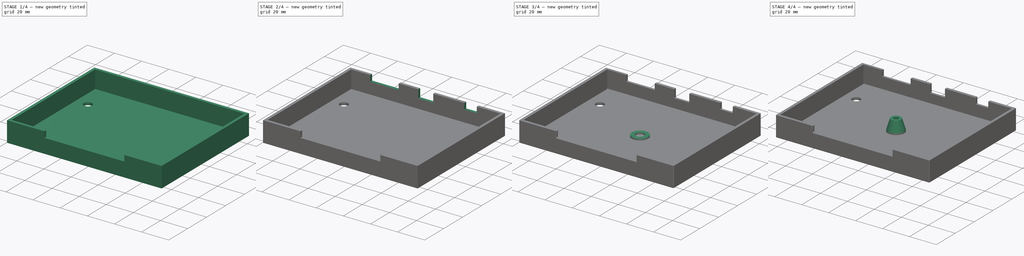
[diagram: build sequence overview — one tinted view per stage of 4, left to right]
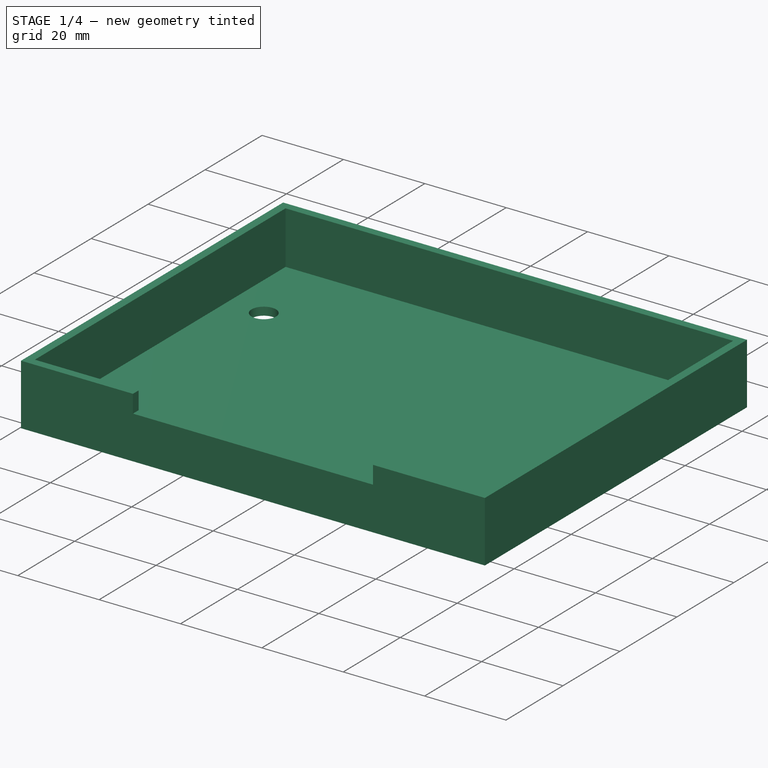
[diagram: stage 1 of 4 — iso view after this stage's code; geometry added in this stage tinted green]
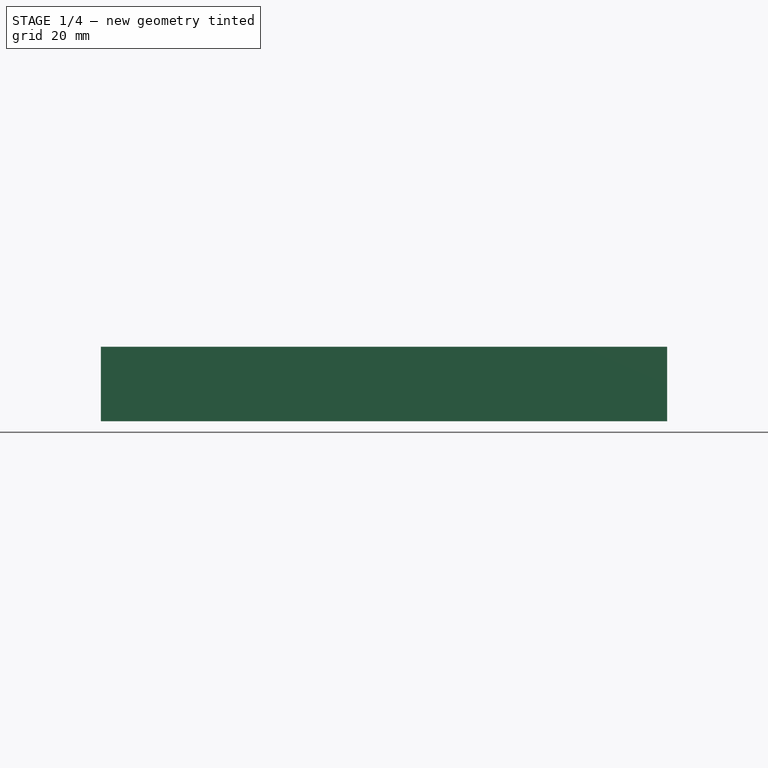
[diagram: stage 1 of 4 — front view after this stage's code; geometry added in this stage tinted green]
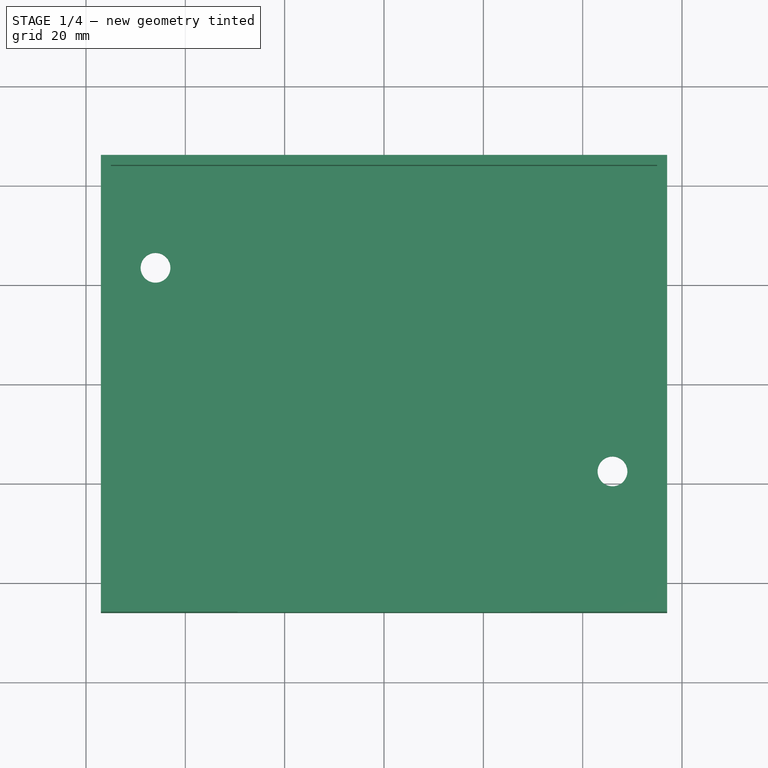
[diagram: stage 1 of 4 — top view after this stage's code; geometry added in this stage tinted green]
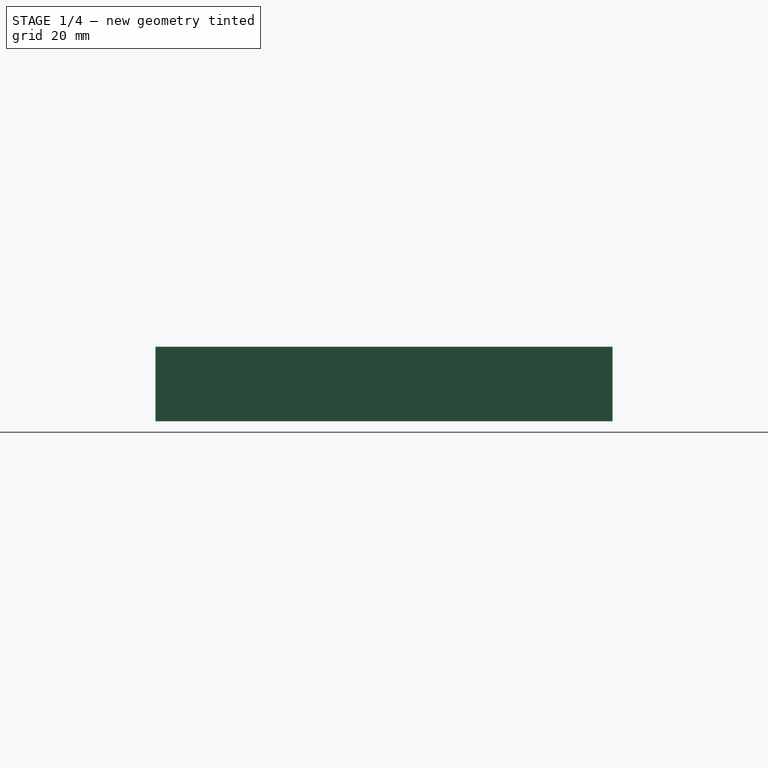
[diagram: stage 1 of 4 — right view after this stage's code; geometry added in this stage tinted green]
FCSTD DOCUMENT  (FreeCAD 0.21R33771 (Git))
Label: touch_keyboard_case_bottom
License: All rights reserved
LicenseURL: http://en.wikipedia.org/wiki/All_rights_reserved
objects: Sketcher::SketchObject×11, PartDesign::CoordinateSystem×7, PartDesign::Pad×4, PartDesign::Pocket×4, App::Link×4, PartDesign::Body×3, App::Part×3, Spreadsheet::Sheet×1, PartDesign::Hole×1, PartDesign::AdditiveLoft×1, PartDesign::Fillet×1
note: 43 computed .brp shape members not serialized (recipe doc carries the construction recipe); baked Part::Feature solids carry a one-line shape summary decoded from their .brp
EXTERNAL_REF file=touch_keyboard_led_strip.FCStd obj=Spreadsheet

FEATURE [Spreadsheet::Sheet] Spreadsheet  label="D"
  cells = A3='width; B3(width)==114 mm; A4='length; B4(length)==92 mm; A5='bottom_part_height; B5(height)==15 mm; A6='pcb_mount_height; B6(pcb_h)==7 mm; A7='bottom_width; B7(bot_w)==2 mm; A8='wall width; B8(wall_w)==2 mm; A9='PCB back distance; B9(pcb_back_d)==0.5 mm; A10='PCB width; B10(pcb_w)==100 mm; A11='PCB length; B11(pcb_l)==81 mm; A12='PCB thickness; B12(pcb_th)==1.6 mm; A13='hole 1 y margin; B13(hole1_y_margin)==4.27 mm; A14='X hole distance 1; B14(x_hole_dist1)==90 mm; A15='X hole distance 2; B15(x_hole_dist2)==60 mm; A16='Y hole distance; B16(y_hole_dist)==72 mm; A18='threaded insert hole diameter; B18(insert_d)==3.6 mm; A19='threaded insert outer diameter; B19(insert_o_d)==4.4 mm; A20='threaded insert wide hole depth; B20(insert_h_w_depth)==0.8 mm; A21='threaded insert countersink diameter; B21(insert_cs_d)==4.8 mm; A22='threaded insert wall thickness; B22(insert_w_th)==4 mm; A23='case screw pcb y margin; B23(case_screw_y_m)==20 mm; A24='case screw pcb x margin; B24(case_screw_x_m)==4 mm; A25='bottom hole diameter1; B25(bot_h_d1)==6 mm; A26='bottom hole diameter2; B26(bot_h_d2)==3.5 mm; A27='bottom hole depth; B27(bot_h_depth)==3 mm; A28='bottom hole wall thickness; B28(bot_h_w_th)==2.6 mm; A29='case post bottom diameter; B29(case_post_d1)==12 mm; A30='case post top diameter; B30(case_post_d2)==5.6 mm; A31='case post gap; B31(case_post_gap)==0.4 mm; A33='sensors connector length; B33(sens_conn_l)==59 mm; A34='sensors connector height; B34(sensors_conn_h)==10 mm; A36='USB conn height; B36(usb_conn_h)==3 mm; A37='USB conn width; B37(usb_conn_w)==7.8 mm; A38='USB conn extra; B38(usb_conn_extra)==1.6 mm; A40='MIDI conn offset; B40(midi_conn_off)==30.48 mm; A41='MIDI conn width; B41(midi_conn_w)==21 mm; A42='MIDI conn height; B42(midi_conn_h)==21 mm; A44='DC conn offset; B44(dc_conn_off)==33 mm; A45='DC conn width; B45(dc_conn_w)==9.2 mm; A46='DC conn height; B46(dc_conn_h)==11 mm; A48='LED strip length; B48(led_strip_l)==<<touch_keyboard_led_strip>>#<<D>>.length
FEATURE [Sketcher::SketchObject] Sketch  label="Case Bottom Sketch 1"
  FullyConstrained = true
  MapMode = 5
  Support = -> [XY_Plane]
  expr: Constraints[16] = <<D>>.pcb_w
  expr: Constraints[17] = <<D>>.pcb_l
  expr: Constraints[19] = <<D>>.case_screw_y_m
  expr: Constraints[20] = <<D>>.case_screw_y_m
  expr: Constraints[21] = <<D>>.bot_h_d1
  expr: Constraints[22] = <<D>>.bot_h_d1
  expr: Constraints[23] = <<D>>.case_screw_x_m
  expr: Constraints[24] = <<D>>.case_screw_x_m
  expr: Constraints[25] = <<D>>.pcb_back_d + <<D>>.wall_w
  expr: Constraints[6] = <<D>>.width
  expr: Constraints[7] = <<D>>.length
  sketch-geometry (10):
    g0: LineSegment StartX=-57 StartY=46 StartZ=0 EndX=57 EndY=46 EndZ=0
    g1: LineSegment StartX=57 StartY=46 StartZ=0 EndX=57 EndY=-46 EndZ=0
    g2: LineSegment StartX=57 StartY=-46 StartZ=0 EndX=-57 EndY=-46 EndZ=0
    g3: LineSegment StartX=-57 StartY=-46 StartZ=0 EndX=-57 EndY=46 EndZ=0
    g4: Circle CenterX=-46 CenterY=23.5 CenterZ=0 NormalX=0 NormalY=0 NormalZ=1 AngleXU=0 Radius=3
    g5: Circle CenterX=46 CenterY=-17.5 CenterZ=0 NormalX=0 NormalY=0 NormalZ=1 AngleXU=0 Radius=3
    g6: LineSegment StartX=-50 StartY=43.5 StartZ=0 EndX=50 EndY=43.5 EndZ=0
    g7: LineSegment StartX=50 StartY=43.5 StartZ=0 EndX=50 EndY=-37.5 EndZ=0
    g8: LineSegment StartX=50 StartY=-37.5 StartZ=0 EndX=-50 EndY=-37.5 EndZ=0
    g9: LineSegment StartX=-50 StartY=-37.5 StartZ=0 EndX=-50 EndY=43.5 EndZ=0
  constraints (31):
    c: Coincident(g0,g1)
    c: Coincident(g1,g2)
    c: Coincident(g2,g3)
    c: Coincident(g3,g0)
    c: Horizontal(g2)
    c: Vertical(g1)
    c: DistanceX(g0,g0) = 114
    c: DistanceY(g3,g3) = 92
    c: Symmetric(g0,g2,g-1)
    c: Symmetric(g0,g0,g-2)
    c: Coincident(g6,g7)
    c: Coincident(g7,g8)
    c: Coincident(g8,g9)
    c: Coincident(g9,g6)
    c: Horizontal(g8)
    c: Vertical(g9)
    c: DistanceX(g6,g6) = 100
    c: DistanceY(g7,g7) = 81
    c: Symmetric(g6,g6,g-2)
    c: DistanceY(g4,g6) = 20
    c: DistanceY(g7,g5) = 20
    c: Diameter(g4) = 6
    c: Diameter(g5) = 6
    c: DistanceX(g5,g7) = 4
    c: DistanceX(g6,g4) = 4
    c: DistanceY(g6,g0) = 2.5
    c: Vertical(g7)
    c: DistanceX(g4,g-1) = 46  'hole1_x'
    c: DistanceY(g-1,g4) = 23.5  'hole1_y'
    c: DistanceX(g-1,g5) = 46  'hole2_x'
    c: DistanceY(g5,g-1) = 17.5  'hole2_y'
FEATURE [PartDesign::Pad] Pad
  Direction = (0,0,1)
  Length = 2
  Length2 = 10
  Profile = -> Sketch
  ReferenceAxis = -> Sketch [N_Axis]
  Type = 0
  expr: Length = <<D>>.bot_w
FEATURE [Sketcher::SketchObject] Sketch001
  ExternalGeometry = -> [Sketch]
  FullyConstrained = true
  MapMode = 5
  Placement = pos=(0,0,2) rot=(0,0,1;0rad)
  Support = -> [Pad]
  expr: Constraints[16] = <<D>>.wall_w
  expr: Constraints[17] = <<D>>.wall_w
  expr: Constraints[20] = <<D>>.wall_w
  expr: Constraints[21] = <<D>>.wall_w
  sketch-geometry (8):
    g0: LineSegment StartX=-55 StartY=44 StartZ=0 EndX=55 EndY=44 EndZ=0
    g1: LineSegment StartX=55 StartY=44 StartZ=0 EndX=55 EndY=-44 EndZ=0
    g2: LineSegment StartX=55 StartY=-44 StartZ=0 EndX=-55 EndY=-44 EndZ=0
    g3: LineSegment StartX=-55 StartY=-44 StartZ=0 EndX=-55 EndY=44 EndZ=0
    g4: LineSegment StartX=-57 StartY=46 StartZ=0 EndX=57 EndY=46 EndZ=0
    g5: LineSegment StartX=57 StartY=46 StartZ=0 EndX=57 EndY=-46 EndZ=0
    g6: LineSegment StartX=57 StartY=-46 StartZ=0 EndX=-57 EndY=-46 EndZ=0
    g7: LineSegment StartX=-57 StartY=-46 StartZ=0 EndX=-57 EndY=46 EndZ=0
  constraints (22):
    c: Coincident(g0,g1)
    c: Coincident(g1,g2)
    c: Coincident(g2,g3)
    c: Coincident(g3,g0)
    c: Horizontal(g0)
    c: Horizontal(g2)
    c: Vertical(g1)
    c: Vertical(g3)
    c: Coincident(g4,g5)
    c: Coincident(g5,g6)
    c: Coincident(g6,g7)
    c: Coincident(g7,g4)
    c: Horizontal(g4)
    c: Horizontal(g6)
    c: Vertical(g5)
    c: Vertical(g7)
    c: DistanceX(g1,g5) = 2
    c: DistanceX(g6,g2) = 2
    c: Coincident(g6,g-6)
    c: Coincident(g4,g-4)
    c: DistanceY(g0,g4) = 2
    c: DistanceY(g6,g2) = 2
FEATURE [PartDesign::Pad] Pad001
  BaseFeature = -> Pad
  Direction = (0,0,1)
  Length = 13
  Length2 = 10
  Profile = -> Sketch001
  ReferenceAxis = -> Sketch001 [N_Axis]
  Type = 0
  expr: Length = <<D>>.height - <<D>>.bot_w
FEATURE [Sketcher::SketchObject] Sketch003  label="Sensor Hole Sketch"
  FullyConstrained = true
  MapMode = 5
  Placement = pos=(0,-46,0) rot=(1,0,0;1.5708rad)
  Support = -> [Pad001]
  expr: Constraints[10] = <<D>>.bot_w + <<D>>.pcb_h + <<D>>.pcb_th
  expr: Constraints[13] = <<D>>.height
  expr: Constraints[7] = <<D>>.sens_conn_l
  expr: Constraints[9] = <<D>>.sensors_conn_h
  sketch-geometry (5):
    g0: LineSegment StartX=-29.5 StartY=20.6 StartZ=0 EndX=29.5 EndY=20.6 EndZ=0
    g1: LineSegment StartX=29.5 StartY=20.6 StartZ=0 EndX=29.5 EndY=10.6 EndZ=0
    g2: LineSegment StartX=29.5 StartY=10.6 StartZ=0 EndX=-29.5 EndY=10.6 EndZ=0
    g3: LineSegment StartX=-29.5 StartY=10.6 StartZ=0 EndX=-29.5 EndY=20.6 EndZ=0
    g4: LineSegment StartX=-50 StartY=15 StartZ=0 EndX=50 EndY=15 EndZ=0
  constraints (15):
    c: Coincident(g0,g1)
    c: Coincident(g1,g2)
    c: Coincident(g2,g3)
    c: Coincident(g3,g0)
    c: Horizontal(g2)
    c: Vertical(g1)
    c: Vertical(g3)
    c: DistanceX(g0,g0) = 59
    c: Symmetric(g0,g0,g-2)
    c: DistanceY(g3,g3) = 10
    c: DistanceY(g-1,g2) = 10.6
    c: DistanceX(g4,g4) = 100
    c: Symmetric(g4,g4,g-2)
    c: DistanceY(g-1,g4) = 15
    c: DistanceY(g4,g0) = 5.6  'sens_conn_hole_top'
FEATURE [PartDesign::Pocket] Pocket
  BaseFeature = -> Pad001
  Direction = (0,1,-2e-16)
  Length = 5
  Length2 = 5
  Profile = -> Sketch003
  ReferenceAxis = -> Sketch003 [N_Axis]
  Type = 0
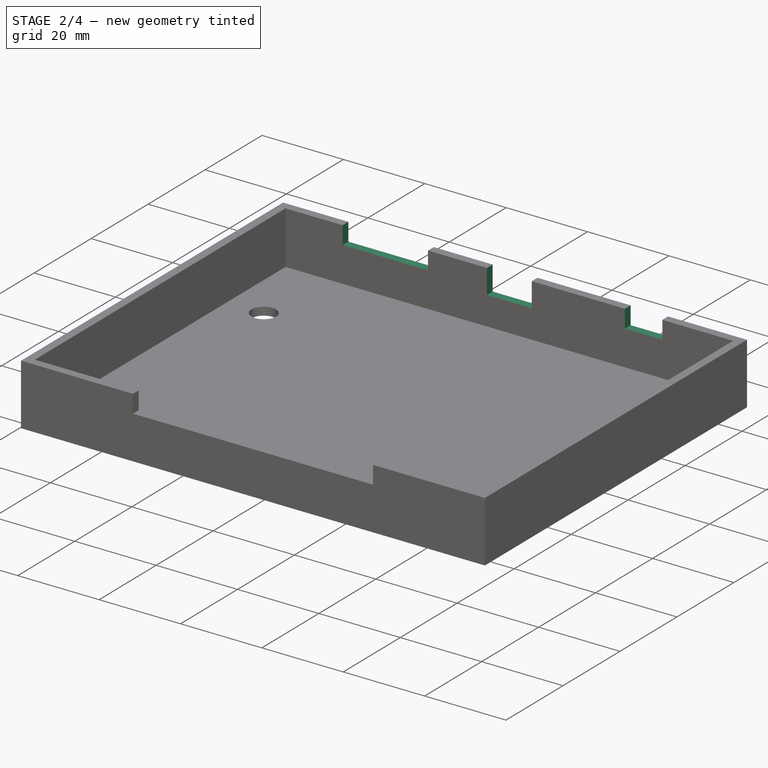
[diagram: stage 2 of 4 — iso view after this stage's code; geometry added in this stage tinted green]
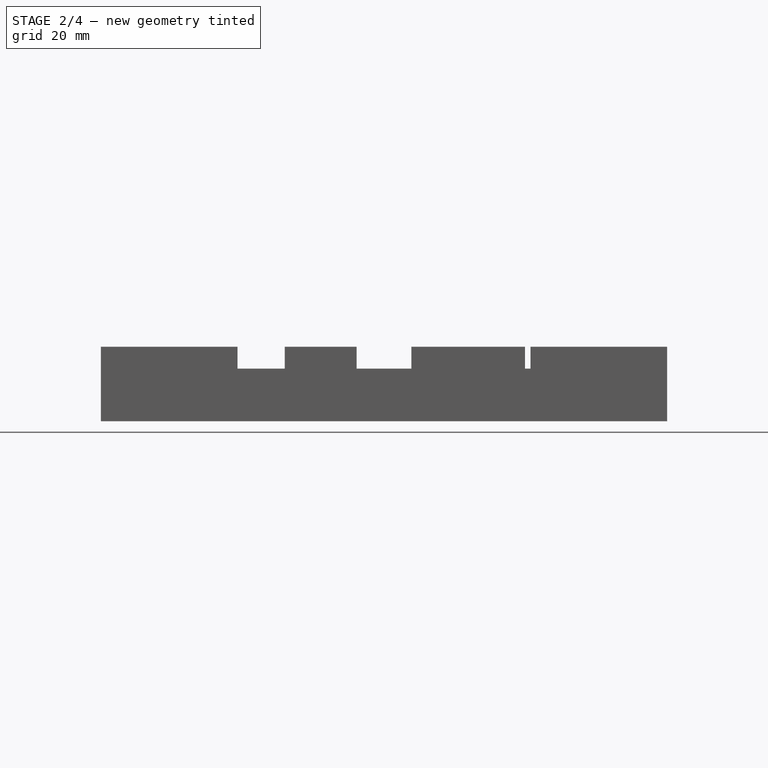
[diagram: stage 2 of 4 — front view after this stage's code; geometry added in this stage tinted green]
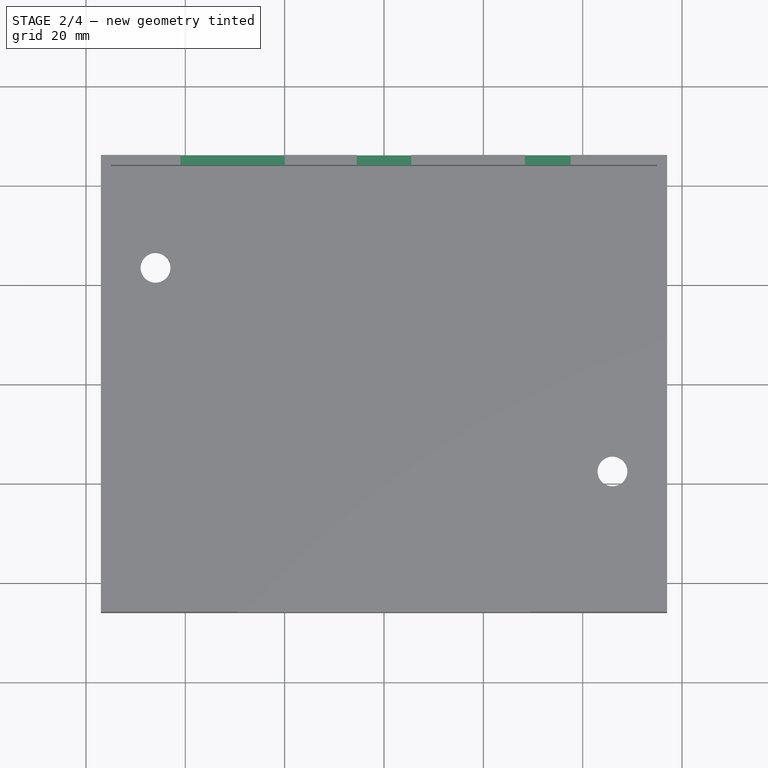
[diagram: stage 2 of 4 — top view after this stage's code; geometry added in this stage tinted green]
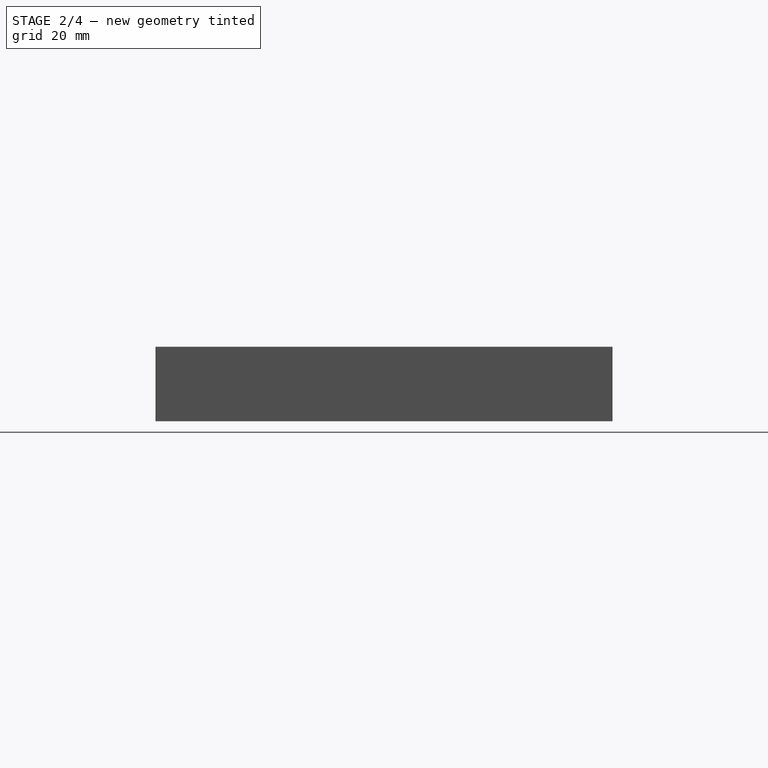
[diagram: stage 2 of 4 — right view after this stage's code; geometry added in this stage tinted green]
FEATURE [Sketcher::SketchObject] Sketch004  label="USB Hole Sketch"
  FullyConstrained = true
  MapMode = 5
  Placement = pos=(0,46,0) rot=(0,0.707107,0.707107;3.14159rad)
  Support = -> [Pocket]
  expr: Constraints[10] = <<D>>.bot_w + <<D>>.pcb_h + <<D>>.pcb_th - <<D>>.usb_conn_extra
  expr: Constraints[12] = <<D>>.height
  expr: Constraints[7] = <<D>>.usb_conn_w + <<D>>.usb_conn_extra * 2
  expr: Constraints[8] = <<D>>.usb_conn_h + <<D>>.usb_conn_extra * 2
  sketch-geometry (5):
    g0: LineSegment StartX=-5.5 StartY=15.2 StartZ=0 EndX=5.5 EndY=15.2 EndZ=0
    g1: LineSegment StartX=5.5 StartY=15.2 StartZ=0 EndX=5.5 EndY=9 EndZ=0
    g2: LineSegment StartX=5.5 StartY=9 StartZ=0 EndX=-5.5 EndY=9 EndZ=0
    g3: LineSegment StartX=-5.5 StartY=9 StartZ=0 EndX=-5.5 EndY=15.2 EndZ=0
    g4: LineSegment StartX=-50 StartY=15 StartZ=0 EndX=50 EndY=15 EndZ=0
  constraints (15):
    c: Coincident(g0,g1)
    c: Coincident(g1,g2)
    c: Coincident(g2,g3)
    c: Coincident(g3,g0)
    c: Horizontal(g2)
    c: Vertical(g1)
    c: Vertical(g3)
    c: DistanceX(g0,g0) = 11
    c: DistanceY(g3,g3) = 6.2
    c: Symmetric(g0,g0,g-2)
    c: DistanceY(g-1,g1) = 9
    c: Symmetric(g4,g4,g-2)
    c: DistanceY(g-1,g4) = 15
    c: DistanceX(g4,g4) = 100
    c: DistanceY(g4,g0) = 0.2  'usb_conn_hole_top'
FEATURE [PartDesign::Pocket] Pocket001
  BaseFeature = -> Pocket
  Direction = (0,-1,2e-16)
  Length = 5
  Length2 = 5
  Profile = -> Sketch004
  ReferenceAxis = -> Sketch004 [N_Axis]
  Type = 0
FEATURE [Sketcher::SketchObject] Sketch005  label="MIDI Hole Sketch"
  FullyConstrained = true
  MapMode = 5
  Placement = pos=(0,46,0) rot=(0,0.707107,0.707107;3.14159rad)
  Support = -> [Pocket001]
  expr: Constraints[11] = <<D>>.midi_conn_off
  expr: Constraints[12] = <<D>>.bot_w + <<D>>.pcb_h + <<D>>.pcb_th
  expr: Constraints[13] = <<D>>.midi_conn_w
  expr: Constraints[14] = <<D>>.midi_conn_h
  expr: Constraints[18] = <<D>>.height
  sketch-geometry (6):
    g0: LineSegment StartX=19.98 StartY=31.6 StartZ=0 EndX=40.98 EndY=31.6 EndZ=0
    g1: LineSegment StartX=40.98 StartY=31.6 StartZ=0 EndX=40.98 EndY=10.6 EndZ=0
    g2: LineSegment StartX=40.98 StartY=10.6 StartZ=0 EndX=19.98 EndY=10.6 EndZ=0
    g3: LineSegment StartX=19.98 StartY=10.6 StartZ=0 EndX=19.98 EndY=31.6 EndZ=0
    g4: LineSegment StartX=30.48 StartY=31.6 StartZ=0 EndX=30.48 EndY=10.6 EndZ=0
    g5: LineSegment StartX=19.98 StartY=15 StartZ=0 EndX=40.98 EndY=15 EndZ=0
  constraints (20):
    c: Coincident(g0,g1)
    c: Coincident(g1,g2)
    c: Coincident(g2,g3)
    c: Coincident(g3,g0)
    c: Horizontal(g0)
    c: Horizontal(g2)
    c: Vertical(g1)
    c: Vertical(g3)
    c: PointOnObject(g4,g2)
    c: Vertical(g4)
    c: Symmetric(g0,g0,g4)
    c: DistanceX(g-1,g4) = 30.48
    c: DistanceY(g-1,g2) = 10.6
    c: DistanceX(g0,g0) = 21
    c: DistanceY(g1,g1) = 21
    c: PointOnObject(g5,g3)
    c: PointOnObject(g5,g1)
    c: Horizontal(g5)
    c: DistanceY(g-1,g5) = 15
    c: DistanceY(g5,g0) = 16.6  'midi_conn_top_h'
FEATURE [PartDesign::Pocket] Pocket002
  BaseFeature = -> Pocket001
  Direction = (0,-1,2e-16)
  Length = 5
  Length2 = 5
  Profile = -> Sketch005
  ReferenceAxis = -> Sketch005 [N_Axis]
  Type = 0
FEATURE [Sketcher::SketchObject] Sketch006  label="DC Hole Sketch"
  FullyConstrained = true
  MapMode = 5
  Placement = pos=(0,46,0) rot=(0,0.707107,0.707107;3.14159rad)
  Support = -> [Pocket002]
  expr: Constraints[11] = <<D>>.dc_conn_off
  expr: Constraints[12] = <<D>>.dc_conn_w
  expr: Constraints[13] = <<D>>.dc_conn_h
  expr: Constraints[14] = <<D>>.bot_w + <<D>>.pcb_h + <<D>>.pcb_th
  expr: Constraints[18] = <<D>>.height
  sketch-geometry (6):
    g0: LineSegment StartX=-37.6 StartY=21.6 StartZ=0 EndX=-28.4 EndY=21.6 EndZ=0
    g1: LineSegment StartX=-28.4 StartY=21.6 StartZ=0 EndX=-28.4 EndY=10.6 EndZ=0
    g2: LineSegment StartX=-28.4 StartY=10.6 StartZ=0 EndX=-37.6 EndY=10.6 EndZ=0
    g3: LineSegment StartX=-37.6 StartY=10.6 StartZ=0 EndX=-37.6 EndY=21.6 EndZ=0
    g4: LineSegment StartX=-33 StartY=21.6 StartZ=0 EndX=-33 EndY=10.6 EndZ=0
    g5: LineSegment StartX=-37.6 StartY=15 StartZ=0 EndX=-28.4 EndY=15 EndZ=0
  constraints (20):
    c: Coincident(g0,g1)
    c: Coincident(g1,g2)
    c: Coincident(g2,g3)
    c: Coincident(g3,g0)
    c: Horizontal(g0)
    c: Horizontal(g2)
    c: Vertical(g1)
    c: Vertical(g3)
    c: PointOnObject(g4,g2)
    c: Vertical(g4)
    c: Symmetric(g0,g0,g4)
    c: DistanceX(g4,g-1) = 33
    c: DistanceX(g0,g0) = 9.2
    c: DistanceY(g3,g3) = 11
    c: DistanceY(g-1,g1) = 10.6
    c: PointOnObject(g5,g3)
    c: PointOnObject(g5,g1)
    c: Horizontal(g5)
    c: DistanceY(g-1,g5) = 15
    c: DistanceY(g5,g0) = 6.6  'dc_conn_top_h'
FEATURE [PartDesign::Pocket] Pocket003
  BaseFeature = -> Pocket002
  Direction = (0,-1,2e-16)
  Length = 5
  Length2 = 5
  Profile = -> Sketch006
  ReferenceAxis = -> Sketch006 [N_Axis]
  Type = 0
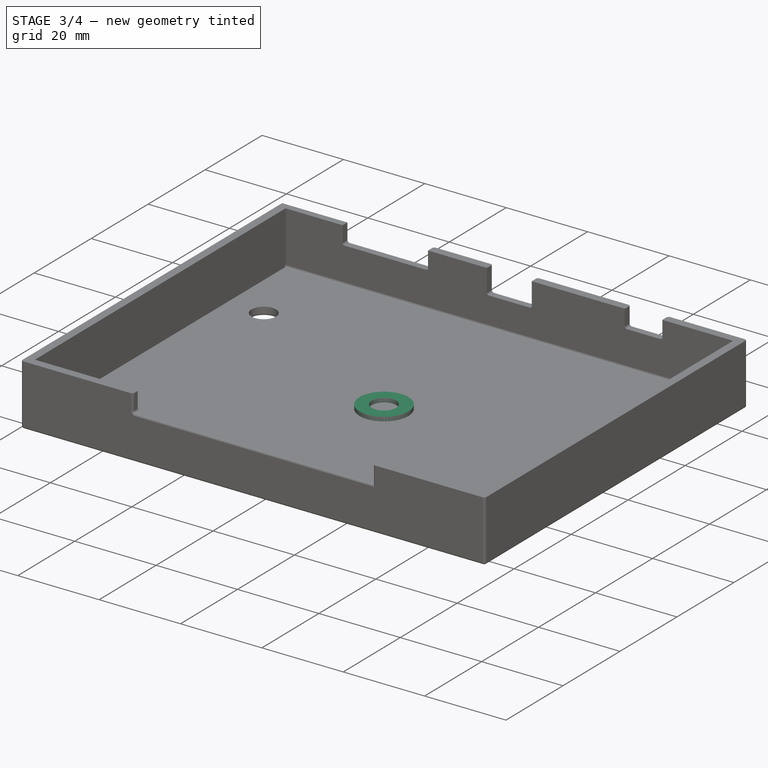
[diagram: stage 3 of 4 — iso view after this stage's code; geometry added in this stage tinted green]
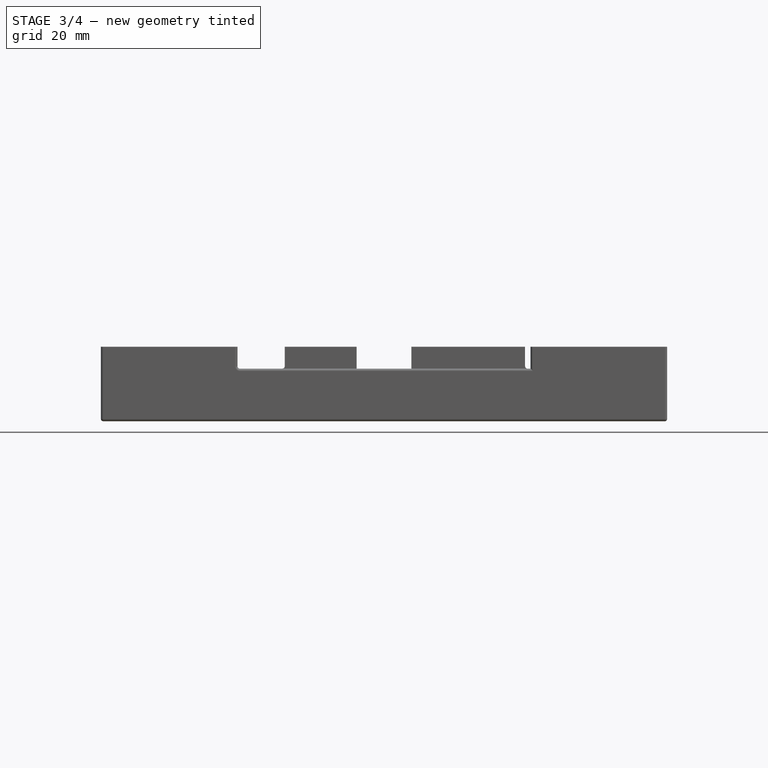
[diagram: stage 3 of 4 — front view after this stage's code; geometry added in this stage tinted green]
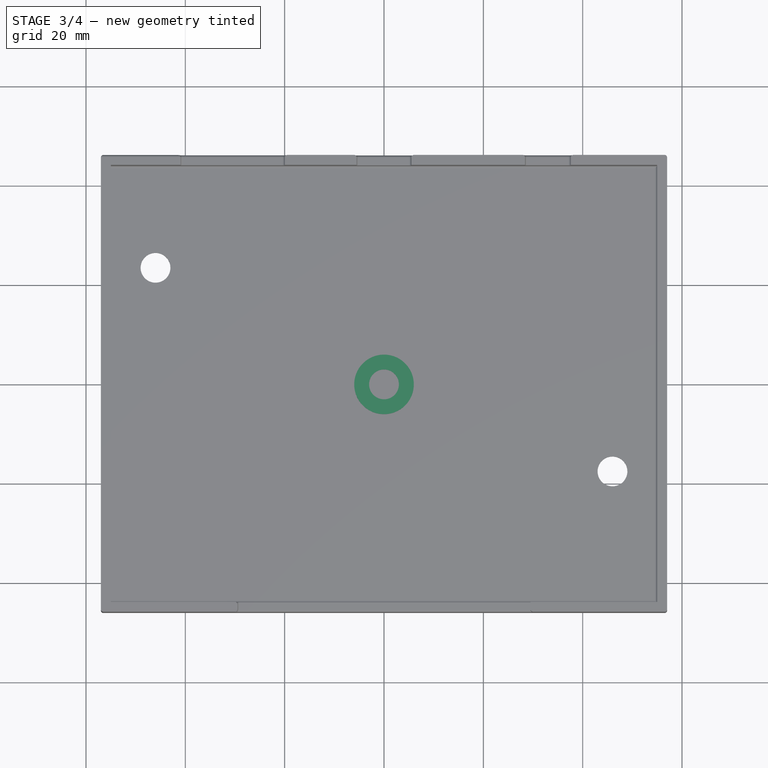
[diagram: stage 3 of 4 — top view after this stage's code; geometry added in this stage tinted green]
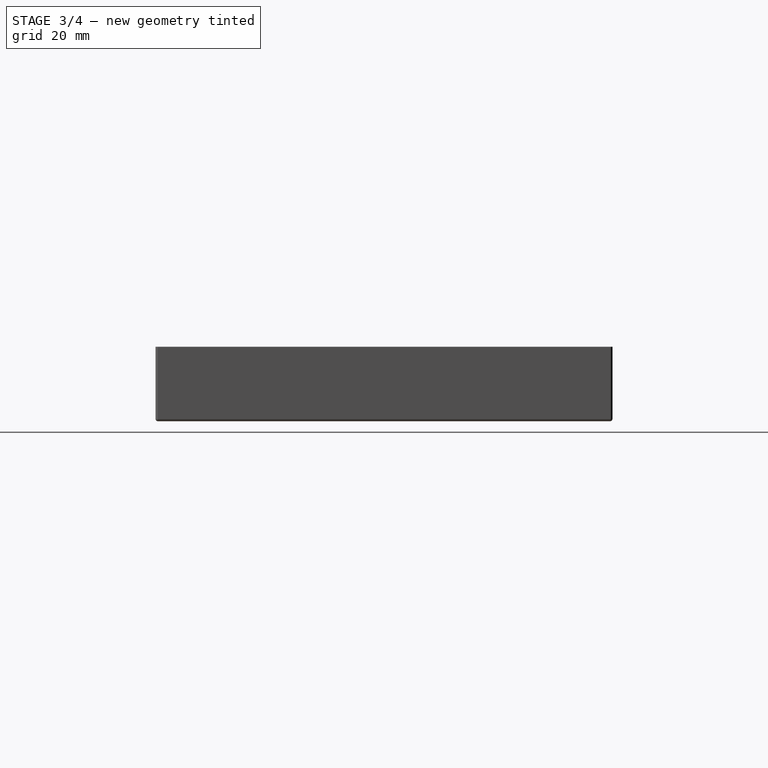
[diagram: stage 3 of 4 — right view after this stage's code; geometry added in this stage tinted green]
FEATURE [Sketcher::SketchObject] Sketch007
  FullyConstrained = true
  MapMode = 5
  Support = -> [XY_Plane005]
  expr: Constraints[2] = <<D>>.bot_h_d2
  expr: Constraints[3] = <<D>>.bot_h_d1
  expr: Constraints[5] = <<D>>.case_post_d1
  sketch-geometry (3):
    g0: Circle CenterX=0 CenterY=0 CenterZ=0 NormalX=0 NormalY=0 NormalZ=1 AngleXU=0 Radius=1.75
    g1: Circle CenterX=0 CenterY=0 CenterZ=0 NormalX=0 NormalY=0 NormalZ=1 AngleXU=0 Radius=3
    g2: Circle CenterX=0 CenterY=0 CenterZ=0 NormalX=0 NormalY=0 NormalZ=1 AngleXU=0 Radius=6
  constraints (6):
    c: Coincident(g0,g-1)
    c: Coincident(g1,g0)
    c: Diameter(g0) = 3.5
    c: Diameter(g1) = 6
    c: Coincident(g2,g1)
    c: Diameter(g2) = 12
FEATURE [PartDesign::Pad] Pad003
  Direction = (0,0,1)
  Length = 3
  Length2 = 10
  Profile = -> Sketch007
  ReferenceAxis = -> Sketch007 [N_Axis]
  Type = 0
  expr: Length = <<D>>.bot_h_depth
FEATURE [PartDesign::Body] Body002  label="Case Bottom Post Body"
  Group = -> [Sketch007,Pad003,Sketch008,Sketch010,AdditiveLoft]
  Origin = -> Origin005
  Tip = -> AdditiveLoft
FEATURE [App::Part] Part002  label="Case Bottom Post"
  AttacherType = Attacher::AttachEngine3D
  Group = -> [Body002]
  MapMode = 2
  Origin = -> Origin004
  Placement = pos=(46,-17.5,0) rot=(0,0,1;0rad)
  Support = -> [Case_Post_1]
FEATURE [PartDesign::Fillet] Fillet
  Base = -> Pocket003 [Edge1,Edge2,Edge3,Edge5,Edge6,Edge8,Edge9,Edge11,Edge12,Edge13,Edge14,Edge16,Edge17,Edge18,Edge20,Edge21,Edge22,Edge24,Edge26,Edge27,Edge28,Edge45,Edge47,Edge53,Edge61,Edge25,Edge63,Edge32,Edge30,Edge72,Edge73,Edge86,Edge71,Edge81,Edge74,Edge75,Edge76,Edge55]
  BaseFeature = -> Pocket003
  Radius = 0.5
  SupportTransform = false
  UseAllEdges = false
FEATURE [PartDesign::Body] Body  label="Case Bottom Body"
  Group = -> [Sketch,Pad,Sketch001,Pad001,Sketch003,Pocket,Sketch004,Pocket001,Sketch005,Pocket002,Sketch006,Pocket003,Fillet]
  Origin = -> Origin
  Tip = -> Fillet
FEATURE [PartDesign::CoordinateSystem] PCB_Hole_1
  AttacherType = Attacher::AttachEngine3D
  AttachmentOffset = pos=(-45,39.23,9) rot=(0,0,1;0rad)
  MapMode = 2
  Placement = pos=(-45,39.23,9) rot=(0,0,1;0rad)
  Support = -> [Body]
  expr: .AttachmentOffset.Base.x = -<<D>>.x_hole_dist1 / 2
  expr: .AttachmentOffset.Base.y = <<D>>.length / 2 - <<D>>.pcb_back_d - <<D>>.wall_w - <<D>>.hole1_y_margin
  expr: .AttachmentOffset.Base.z = <<D>>.bot_w + <<D>>.pcb_h
FEATURE [App::Part] Part001  label="PCB Post"
  AttacherType = Attacher::AttachEngine3D
  Group = -> [Body001]
  MapMode = 2
  Origin = -> Origin003
  Placement = pos=(-45,39.23,9) rot=(0,0,1;0rad)
  Support = -> [PCB_Hole_1]
FEATURE [PartDesign::CoordinateSystem] PCB_Hole_2
  AttacherType = Attacher::AttachEngine3D
  AttachmentOffset = pos=(90,0,0) rot=(0,0,1;0rad)
  MapMode = 2
  Placement = pos=(45,39.23,9) rot=(0,0,1;0rad)
  Support = -> [PCB_Hole_1]
  expr: .AttachmentOffset.Base.x = <<D>>.x_hole_dist1
FEATURE [App::Link] Link  label="PCB Post001"
  AttacherType = Attacher::AttachEngine3D
  LinkPlacement = pos=(45,39.23,9) rot=(0,0,1;0rad)
  LinkedObject = -> Part001
  MapMode = 2
  Placement = pos=(45,39.23,9) rot=(0,0,1;0rad)
  Support = -> [PCB_Hole_2]
FEATURE [PartDesign::CoordinateSystem] PCB_Hole_3
  AttacherType = Attacher::AttachEngine3D
  AttachmentOffset = pos=(15,-72,0) rot=(0,0,1;0rad)
  MapMode = 2
  Placement = pos=(-30,-32.77,9) rot=(0,0,1;0rad)
  Support = -> [PCB_Hole_1]
  expr: .AttachmentOffset.Base.x = (<<D>>.x_hole_dist1 - <<D>>.x_hole_dist2) / 2
  expr: .AttachmentOffset.Base.y = -<<D>>.y_hole_dist
FEATURE [PartDesign::CoordinateSystem] PCB_Hole_4
  AttacherType = Attacher::AttachEngine3D
  AttachmentOffset = pos=(60,0,0) rot=(0,0,1;0rad)
  MapMode = 2
  Placement = pos=(30,-32.77,9) rot=(0,0,1;0rad)
  Support = -> [PCB_Hole_3]
  expr: .AttachmentOffset.Base.x = <<D>>.x_hole_dist2
FEATURE [App::Link] Link001  label="PCB Post002"
  AttacherType = Attacher::AttachEngine3D
  LinkPlacement = pos=(-30,-32.77,9) rot=(0,0,1;0rad)
  LinkedObject = -> Part001
  MapMode = 2
  Placement = pos=(-30,-32.77,9) rot=(0,0,1;0rad)
  Support = -> [PCB_Hole_3]
FEATURE [App::Link] Link002  label="PCB Post003"
  AttacherType = Attacher::AttachEngine3D
  LinkPlacement = pos=(30,-32.77,9) rot=(0,0,1;0rad)
  LinkedObject = -> Part001
  MapMode = 2
  Placement = pos=(30,-32.77,9) rot=(0,0,1;0rad)
  Support = -> [PCB_Hole_4]
FEATURE [PartDesign::CoordinateSystem] FrontLeftTopEdge
  AttacherType = Attacher::AttachEngine3D
  AttachmentOffset = pos=(-57,-46,15) rot=(0,0,1;0rad)
  MapMode = 2
  Placement = pos=(-57,-46,15) rot=(0,0,1;0rad)
  Support = -> [Body]
  expr: .AttachmentOffset.Base.x = -<<D>>.width / 2
  expr: .AttachmentOffset.Base.y = -<<D>>.length / 2
  expr: .AttachmentOffset.Base.z = <<D>>.height
FEATURE [App::Part] Part  label="Case Bottom"
  AttacherType = Attacher::AttachEngine3D
  Group = -> [Body,PCB_Hole_1,Part001,Link,PCB_Hole_2,PCB_Hole_3,PCB_Hole_4,Link001,Link002,Part002,Case_Post_1,Case_Post_2,Link003,FrontLeftTopEdge]
  Origin = -> Origin001

RESOLVED EXTERNAL PARTS (link-assembly join: the EXTERNAL_REF files above that resolve inside this repo's crawl, each included once):
---- part touch_keyboard_led_strip.FCStd = doc fcstd_688defd62778 ----
FCSTD DOCUMENT  (FreeCAD 0.21R33771 (Git))
Label: touch_keyboard_led_strip
License: All rights reserved
LicenseURL: http://en.wikipedia.org/wiki/All_rights_reserved
objects: App::Link×2, Part::FeaturePython×2, App::Part×2, PartDesign::CoordinateSystem×2, Part::Feature×1, Spreadsheet::Sheet×1, Part::Box×1
note: 4 computed .brp shape members not serialized (recipe doc carries the construction recipe); baked Part::Feature solids carry a one-line shape summary decoded from their .brp

FEATURE [Part::Feature] Part__Feature  label="WS2812B"
  shape: bbox 4.95 x 5.35 x 1.7 mm, 58 faces (baked)
FEATURE [Spreadsheet::Sheet] Spreadsheet  label="D"
  cells = A2='strip width; B2(width)==20.5 mm; A3='strip length; B3(length)==109 mm; A4='plate height; B4(plate_height)==2.5 mm; A5='top LEDS; B5(top_leds)=9; A6='bottom LEDS; B6(bottom_leds)=10; A7='LED x interval; B7(led_x_interval)==10.3 mm; A8='bottom LED x; B8(bot_led_x)==8.5 mm; A9='bottom LED y; B9(bot_led_y)==5.3 mm; A10='top LED x; B10(top_led_x)==bot_led_x + led_x_interval / 2; A11='top LED y; B11(top_led_y)==14.8 mm
FEATURE [Part::Box] Box  label="Cube"
  AttacherType = Attacher::AttachEngine3D
  Height = 2.5
  Length = 109
  Width = 20.5
  expr: Height = <<D>>.plate_height
  expr: Length = <<D>>.length
  expr: Width = <<D>>.width
FEATURE [App::Link] Link  label="WS2812B001"
  LinkPlacement = pos=(8.5,5.3,2.5) rot=(0,0,1;3.14159rad)
  LinkedObject = -> Part__Feature
  Placement = pos=(8.5,5.3,2.5) rot=(0,0,1;3.14159rad)
  expr: .Placement.Base.x = <<D>>.bot_led_x
  expr: .Placement.Base.y = <<D>>.bot_led_y
  expr: .Placement.Base.z = <<D>>.plate_height
FEATURE [Part::FeaturePython] Array  # Draft array (typed FeaturePython)
  AlwaysSyncPlacement = false
  Angle = 360
  ArrayType = 0
  Axis = (0,0,1)
  Base = -> Link
  Center = (0,0,0)
  Count = 10
  ExpandArray = false
  Fuse = false
  IntervalAxis = (0,0,0)
  IntervalX = (10.3,0,0)
  IntervalY = (0,100,0)
  IntervalZ = (0,0,100)
  NumberCircles = 3
  NumberPolar = 5
  NumberX = 10
  NumberY = 1
  NumberZ = 1
  PlacementList = 10 placements: arithmetic series from (8.5,5.3,2.5) step (10.3,0,0) to (101.2,5.3,2.5)
  RadialDistance = 50
  ScaleList = (10) [(1,1,1),(1,1,1),(1,1,1),(1,1,1),(1,1,1),(1,1,1),(1,1,1),(1,1,1),(1,1,1),(1,1,1)]
  Symmetry = 1
  TangentialDistance = 25
FEATURE [App::Link] Link001  label="WS2812B002"
  LinkPlacement = pos=(13.65,14.8,2.5) rot=(0,0,1;0rad)
  LinkedObject = -> Part__Feature
  Placement = pos=(13.65,14.8,2.5) rot=(0,0,1;0rad)
  expr: .Placement.Base.x = <<D>>.top_led_x
  expr: .Placement.Base.y = <<D>>.top_led_y
  expr: .Placement.Base.z = <<D>>.plate_height
FEATURE [Part::FeaturePython] Array001  # Draft array (typed FeaturePython)
  AlwaysSyncPlacement = false
  Angle = 360
  ArrayType = 0
  Axis = (0,0,1)
  Base = -> Link001
  Center = (0,0,0)
  Count = 9
  ExpandArray = false
  Fuse = false
  IntervalAxis = (0,0,0)
  IntervalX = (10.3,0,0)
  IntervalY = (0,100,0)
  IntervalZ = (0,0,100)
  NumberCircles = 3
  NumberPolar = 5
  NumberX = 9
  NumberY = 1
  NumberZ = 1
  PlacementList = 9 placements: arithmetic series from (13.65,14.8,2.5) step (10.3,0,0) to (96.05,14.8,2.5)
  RadialDistance = 50
  ScaleList = (9) [(1,1,1),(1,1,1),(1,1,1),(1,1,1),(1,1,1),(1,1,1),(1,1,1),(1,1,1),(1,1,1)]
  Symmetry = 1
  TangentialDistance = 25
FEATURE [App::Part] Part001  label="Plate"
  Group = -> [Box,Link,Array,Link001,Array001]
  Origin = -> Origin001
FEATURE [PartDesign::CoordinateSystem] Botom_Left
  AttacherType = Attacher::AttachEngine3D
  MapMode = 2
  Support = -> [Part001]
FEATURE [PartDesign::CoordinateSystem] Bottom_middle
  AttacherType = Attacher::AttachEngine3D
  AttachmentOffset = pos=(54.5,0,0) rot=(0,0,1;0rad)
  MapMode = 2
  Placement = pos=(54.5,0,0) rot=(0,0,1;0rad)
  Support = -> [Part001]
  expr: .AttachmentOffset.Base.x = <<D>>.length / 2
FEATURE [App::Part] Part  label="LED Strip"
  Group = -> [Part001,Part__Feature,Botom_Left,Bottom_middle]
  Origin = -> Origin
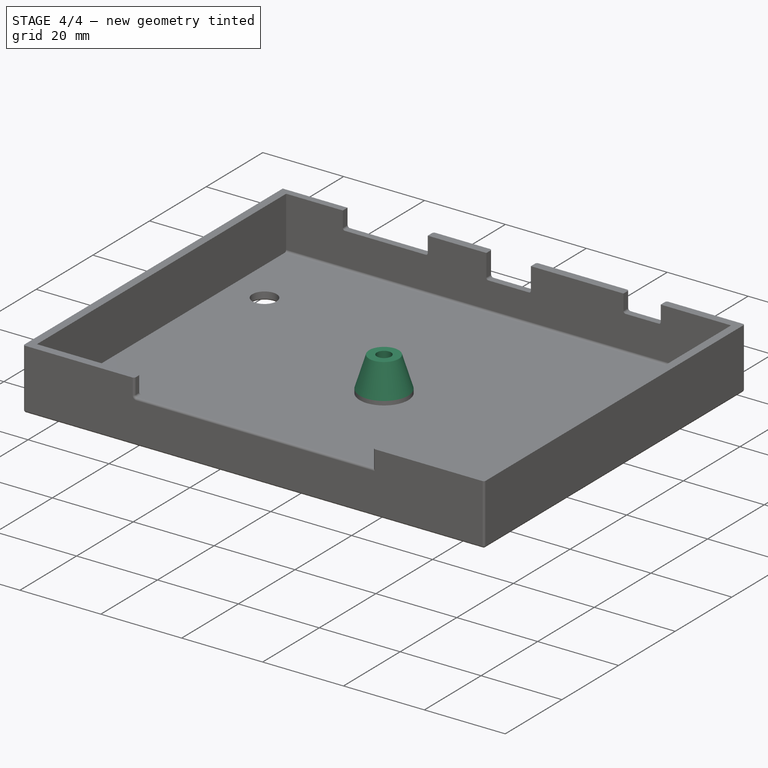
[diagram: stage 4 of 4 — iso view after this stage's code; geometry added in this stage tinted green]
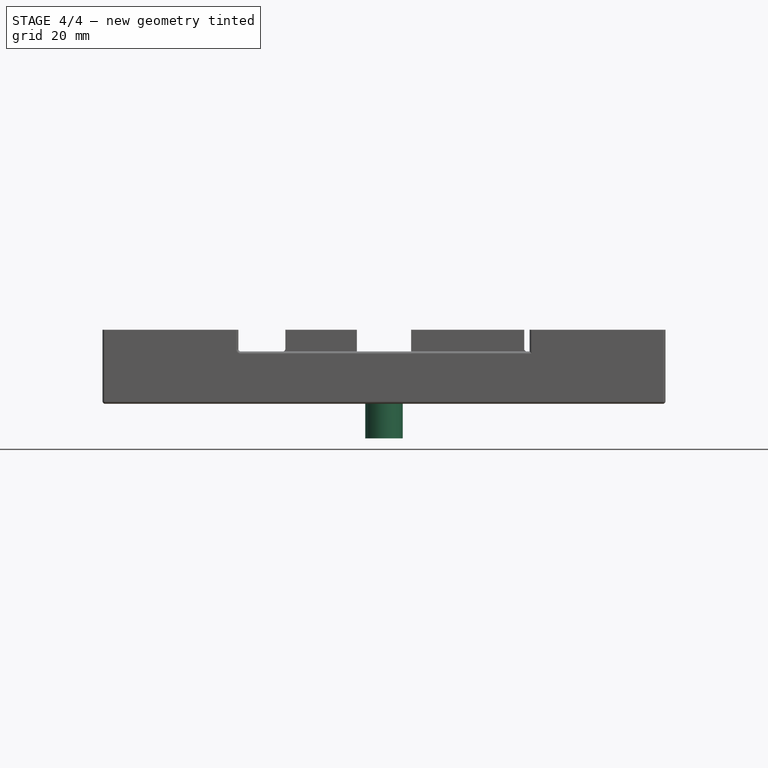
[diagram: stage 4 of 4 — front view after this stage's code; geometry added in this stage tinted green]
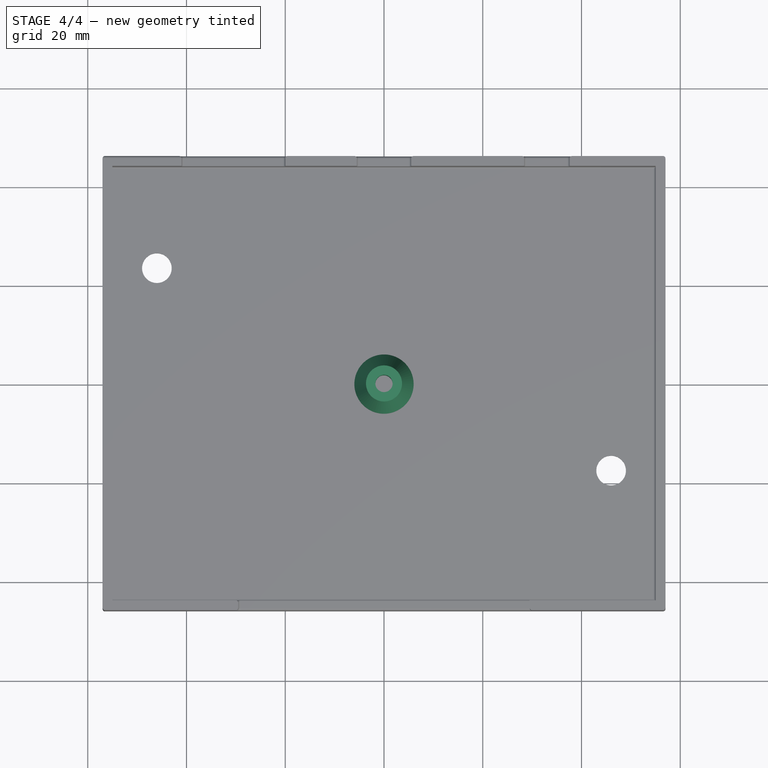
[diagram: stage 4 of 4 — top view after this stage's code; geometry added in this stage tinted green]
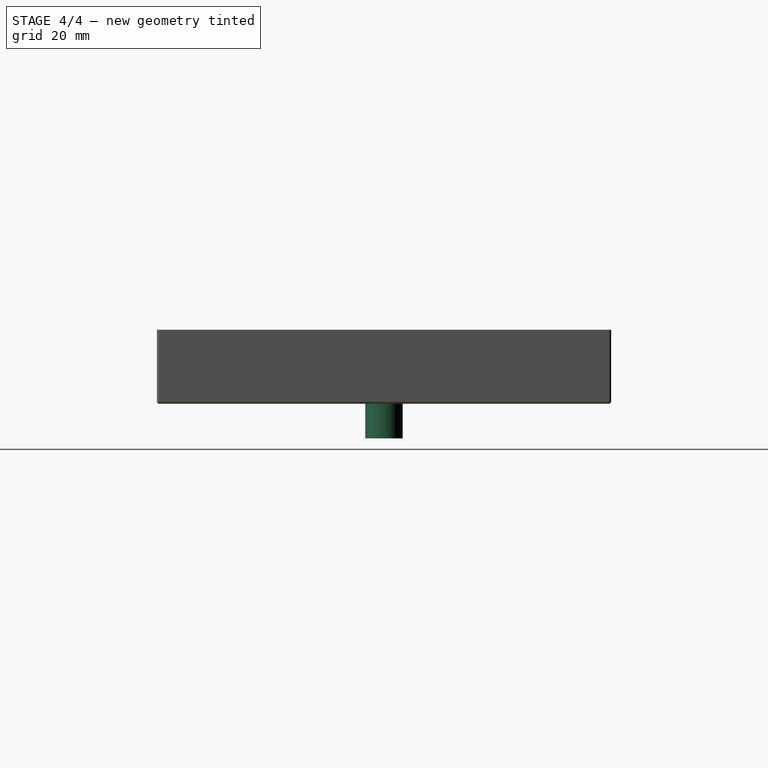
[diagram: stage 4 of 4 — right view after this stage's code; geometry added in this stage tinted green]
FEATURE [Sketcher::SketchObject] Sketch002
  FullyConstrained = true
  MapMode = 5
  Support = -> [XY_Plane002]
  expr: Constraints[2] = <<D>>.insert_d
  expr: Constraints[3] = <<D>>.insert_d + <<D>>.insert_w_th
  sketch-geometry (2):
    g0: Circle CenterX=0 CenterY=0 CenterZ=0 NormalX=0 NormalY=0 NormalZ=1 AngleXU=0 Radius=3.8
    g1: Circle CenterX=0 CenterY=0 CenterZ=0 NormalX=0 NormalY=0 NormalZ=1 AngleXU=0 Radius=1.8
  constraints (4):
    c: Coincident(g0,g-1)
    c: Coincident(g1,g0)
    c: Diameter(g1) = 3.6
    c: Diameter(g0) = 7.6
FEATURE [PartDesign::Pad] Pad002
  Direction = (0,0,1)
  Length = 7
  Length2 = 10
  Profile = -> Sketch002
  ReferenceAxis = -> Sketch002 [N_Axis]
  Reversed = true
  Type = 0
  expr: Length = <<D>>.pcb_h
FEATURE [Sketcher::SketchObject] Sketch008
  AttachmentOffset = pos=(0,0,7.6) rot=(0,0,1;0rad)
  FullyConstrained = true
  MapMode = 5
  Placement = pos=(0,0,10.6) rot=(0,0,1;0rad)
  Support = -> [Pad003]
  expr: .AttachmentOffset.Base.z = <<D>>.bot_w + <<D>>.pcb_h + <<D>>.pcb_th - <<D>>.bot_h_depth
  expr: Constraints[2] = <<D>>.bot_h_d2
  expr: Constraints[3] = <<D>>.bot_h_d1 + <<D>>.bot_h_w_th / 2
  sketch-geometry (2):
    g0: Circle CenterX=0 CenterY=0 CenterZ=0 NormalX=0 NormalY=0 NormalZ=1 AngleXU=0 Radius=3.65
    g1: Circle CenterX=0 CenterY=0 CenterZ=0 NormalX=0 NormalY=0 NormalZ=1 AngleXU=0 Radius=1.75
  constraints (4):
    c: Coincident(g0,g-1)
    c: Coincident(g1,g0)
    c: Diameter(g1) = 3.5
    c: Diameter(g0) = 7.3
FEATURE [PartDesign::CoordinateSystem] Case_Post_1
  AttacherType = Attacher::AttachEngine3D
  AttachmentOffset = pos=(0,0,0) rot=(0,0,-1;1.5708rad)
  MapMode = 11
  Placement = pos=(46,-17.5,0) rot=(0,0,1;0rad)
  Support = -> [Sketch]
FEATURE [PartDesign::CoordinateSystem] Case_Post_2
  AttacherType = Attacher::AttachEngine3D
  AttachmentOffset = pos=(0,0,0) rot=(0,0,-1;1.5708rad)
  MapMode = 11
  Placement = pos=(-46,23.5,0) rot=(0,0,1;0rad)
  Support = -> [Sketch]
FEATURE [App::Link] Link003  label="Case Bottom Post001"
  AttacherType = Attacher::AttachEngine3D
  LinkPlacement = pos=(-46,23.5,0) rot=(0,0,1;0rad)
  LinkedObject = -> Part002
  MapMode = 2
  Placement = pos=(-46,23.5,0) rot=(0,0,1;0rad)
  Support = -> [Case_Post_2]
FEATURE [Sketcher::SketchObject] Sketch009
  ExternalGeometry = -> [Pad002]
  FullyConstrained = true
  MapMode = 5
  Support = -> [Pad002]
  sketch-geometry (1):
    g0: Circle CenterX=0 CenterY=0 CenterZ=0 NormalX=0 NormalY=0 NormalZ=1 AngleXU=0 Radius=1.8
  constraints (2):
    c: Coincident(g0,g-3)
    c: Equal(g0,g-3)
FEATURE [PartDesign::Hole] Hole
  BaseFeature = -> Pad002
  CustomThreadClearance = 0
  Depth = 0.8
  DepthType = 0
  Diameter = 4.4
  DrillForDepth = false
  DrillPoint = 1
  DrillPointAngle = 118
  HoleCutCountersinkAngle = 90
  HoleCutCustomValues = false
  HoleCutDepth = 0
  HoleCutDiameter = 4.8
  HoleCutType = 2
  ModelThread = false
  Profile = -> Sketch009
  Tapered = false
  TaperedAngle = 90
  ThreadClass = 0
  ThreadDepth = 0.8
  ThreadDepthType = 0
  ThreadDirection = 0
  ThreadFit = 0
  ThreadSize = 0
  ThreadType = 0
  Threaded = false
  UseCustomThreadClearance = false
  expr: Depth = <<D>>.insert_h_w_depth
  expr: Diameter = <<D>>.insert_o_d
  expr: HoleCutDiameter = <<D>>.insert_cs_d
FEATURE [PartDesign::Body] Body001  label="PCB Post Body"
  Group = -> [Sketch002,Pad002,Sketch009,Hole]
  Origin = -> Origin002
  Tip = -> Hole
FEATURE [Sketcher::SketchObject] Sketch010
  ExternalGeometry = -> [Pad003]
  FullyConstrained = true
  MapMode = 5
  Placement = pos=(0,0,3) rot=(0,0,1;0rad)
  Support = -> [Pad003]
  expr: Constraints[3] = <<D>>.bot_h_d2
  sketch-geometry (2):
    g0: Circle CenterX=0 CenterY=0 CenterZ=0 NormalX=0 NormalY=0 NormalZ=1 AngleXU=0 Radius=6
    g1: Circle CenterX=0 CenterY=0 CenterZ=0 NormalX=0 NormalY=0 NormalZ=1 AngleXU=0 Radius=1.75
  constraints (4):
    c: Equal(g0,g-3)
    c: Coincident(g0,g-3)
    c: Coincident(g1,g0)
    c: Diameter(g1) = 3.5
FEATURE [PartDesign::AdditiveLoft] AdditiveLoft
  BaseFeature = -> Pad003
  Closed = false
  Profile = -> Sketch010
  Ruled = false
  Sections = -> [Sketch008]
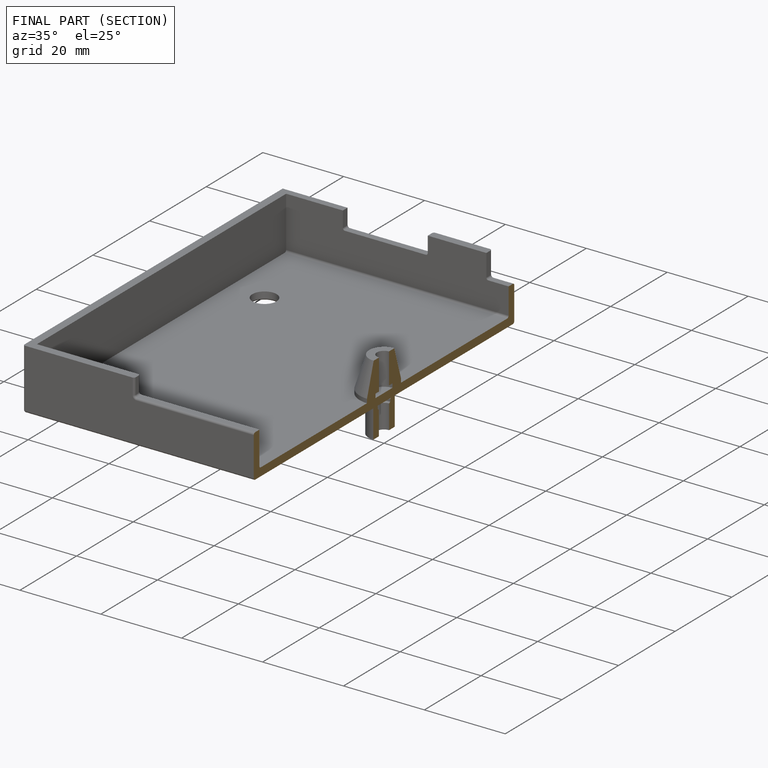
[diagram: finished part — half-section view (interior)]
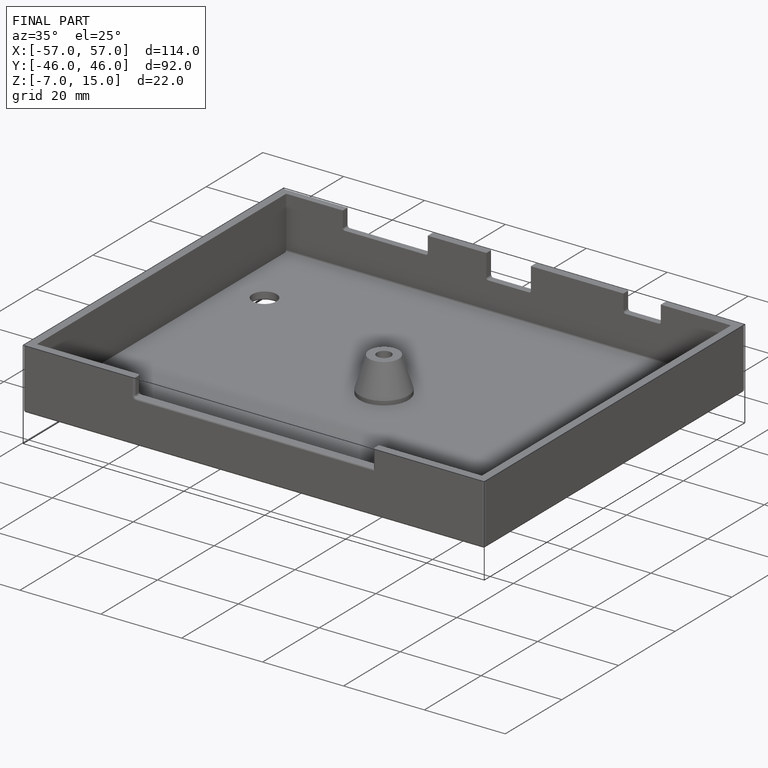
[diagram: finished part — iso view with bounding-box wireframe]
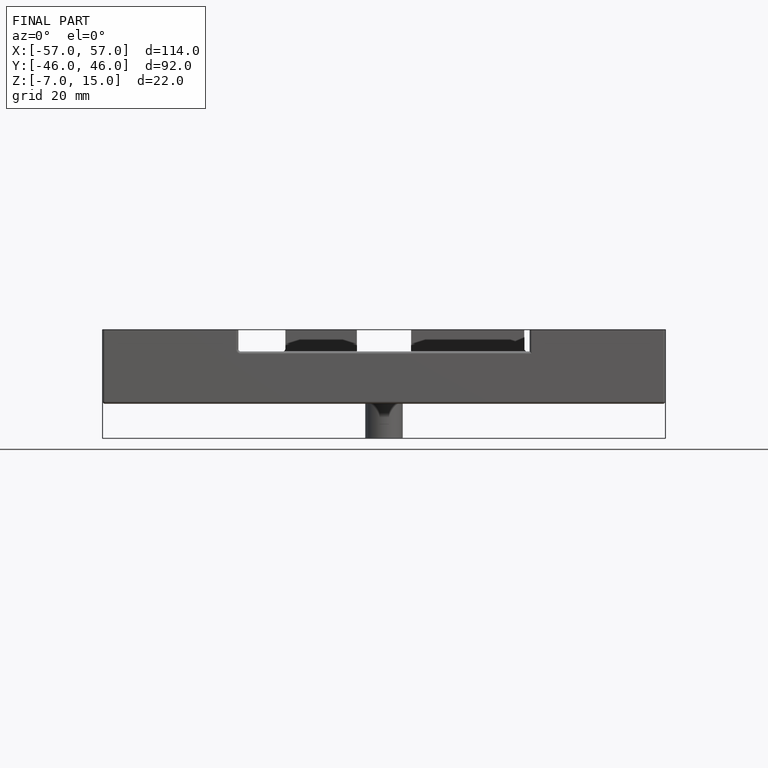
[diagram: finished part — front view with bounding-box wireframe]
